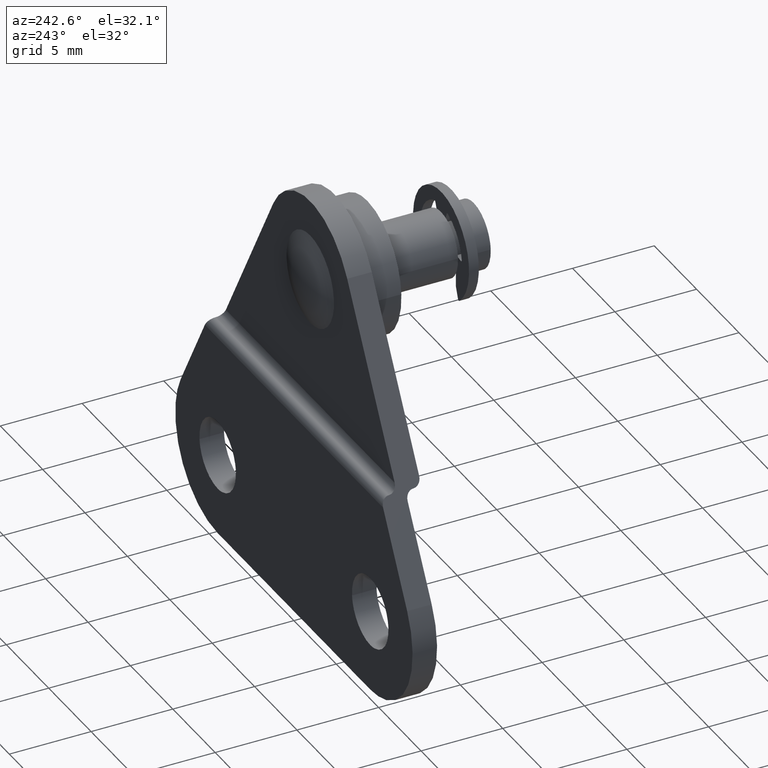
[diagram: clean part render]
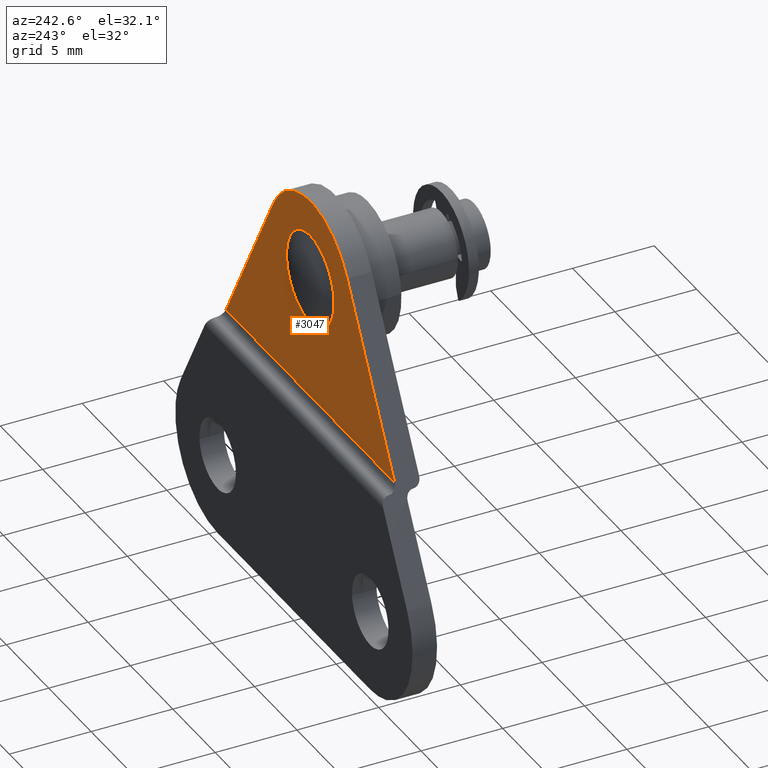
[diagram: same view with one face highlighted and labeled with its STEP entity id]
A machine part, auxiliary view. The second image highlights one B-rep face of the part: STEP entity #3047.
In plain terms, the highlighted face is a freeform B-spline surface patch.
Its self-contained STEP definition (entity closure, byte-faithful):
#2342=CARTESIAN_POINT('',(0.0,-0.999996304281336,18.800003535531779));
#2343=VERTEX_POINT('',#2342);
#2344=CARTESIAN_POINT('',(0.0,-0.999996304281336,13.199996464468221));
#2345=VERTEX_POINT('',#2344);
#2346=CARTESIAN_POINT('',(0.0,-0.999996304281336,18.800003535531779));
#2347=CARTESIAN_POINT('',(-2.800003535531781,-0.999996304281336,18.800003535531783));
#2348=CARTESIAN_POINT('',(-2.800003535531780,-0.999996304281336,16.0));
#2349=CARTESIAN_POINT('',(-2.800003535531781,-0.999996304281336,13.199996464468219));
#2350=CARTESIAN_POINT('',(0.0,-0.999996304281336,13.199996464468221));
#2358=(BOUNDED_CURVE()B_SPLINE_CURVE(2,(#2346,#2347,#2348,#2349,#2350),.UNSPECIFIED.,.F.,.U.)B_SPLINE_CURVE_WITH_KNOTS((3,2,3),(0.500000000000000,0.750000000000000,1.0),.UNSPECIFIED.)CURVE()GEOMETRIC_REPRESENTATION_ITEM()RATIONAL_B_SPLINE_CURVE((1.0,0.707106781186547,1.0,0.707106781186547,1.0))REPRESENTATION_ITEM(''));
#2359=EDGE_CURVE('',#2343,#2345,#2358,.T.);
#2361=CARTESIAN_POINT('',(0.0,-0.999996304281336,13.199996464468221));
#2362=CARTESIAN_POINT('',(2.800003535531781,-0.999996304281336,13.199996464468219));
#2363=CARTESIAN_POINT('',(2.800003535531780,-0.999996304281336,16.0));
#2364=CARTESIAN_POINT('',(2.800003535531781,-0.999996304281336,18.800003535531783));
#2365=CARTESIAN_POINT('',(0.0,-0.999996304281336,18.800003535531779));
#2373=(BOUNDED_CURVE()B_SPLINE_CURVE(2,(#2361,#2362,#2363,#2364,#2365),.UNSPECIFIED.,.F.,.U.)B_SPLINE_CURVE_WITH_KNOTS((3,2,3),(0.0,0.250000000000000,0.500000000000000),.UNSPECIFIED.)CURVE()GEOMETRIC_REPRESENTATION_ITEM()RATIONAL_B_SPLINE_CURVE((1.0,0.707106781186547,1.0,0.707106781186547,1.0))REPRESENTATION_ITEM(''));
#2374=EDGE_CURVE('',#2345,#2343,#2373,.T.);
#2459=CARTESIAN_POINT('',(-4.357876553693835,-1.0,18.451308210479748));
#2460=VERTEX_POINT('',#2459);
#2466=CARTESIAN_POINT('',(-9.955490004592731,-1.0,8.500000000000000));
#2467=VERTEX_POINT('',#2466);
#2468=CARTESIAN_POINT('',(-9.955490004592731,-1.0,8.500000000000000));
#2469=CARTESIAN_POINT('',(-4.357876553693835,-1.0,18.451308210479748));
#2470=QUASI_UNIFORM_CURVE('',1,(#2468,#2469),.UNSPECIFIED.,.F.,.U.);
#2471=EDGE_CURVE('',#2467,#2460,#2470,.T.);
#2617=CARTESIAN_POINT('',(9.955483750000102,-1.0,8.500000000000000));
#2618=VERTEX_POINT('',#2617);
#2632=CARTESIAN_POINT('',(4.357877500000000,-1.0,18.451300000000000));
#2633=VERTEX_POINT('',#2632);
#2634=CARTESIAN_POINT('',(4.357877500000000,-1.0,18.451300000000000));
#2635=CARTESIAN_POINT('',(9.955483750000102,-1.0,8.500000000000000));
#2636=QUASI_UNIFORM_CURVE('',1,(#2634,#2635),.UNSPECIFIED.,.F.,.U.);
#2637=EDGE_CURVE('',#2633,#2618,#2636,.T.);
#2816=CARTESIAN_POINT('',(-4.357876553693835,-1.0,18.451308210479748));
#2817=CARTESIAN_POINT('',(-2.924235078248259,-1.0,21.000001970171443));
#2818=CARTESIAN_POINT('',(0.000002415257209,-1.0,20.999999215459379));
#2819=CARTESIAN_POINT('',(2.924239908762678,-1.0,20.999996460747326));
#2820=CARTESIAN_POINT('',(4.357877500000000,-1.0,18.451300000000000));
#2828=(BOUNDED_CURVE()B_SPLINE_CURVE(2,(#2816,#2817,#2818,#2819,#2820),.UNSPECIFIED.,.F.,.U.)B_SPLINE_CURVE_WITH_KNOTS((3,2,3),(0.0,0.500000000000000,1.0),.UNSPECIFIED.)CURVE()GEOMETRIC_REPRESENTATION_ITEM()RATIONAL_B_SPLINE_CURVE((1.0,0.863209412007292,1.0,0.863209412007292,1.0))REPRESENTATION_ITEM(''));
#2829=EDGE_CURVE('',#2460,#2633,#2828,.T.);
#2855=CARTESIAN_POINT('',(-9.955490004592731,-1.0,8.500000000000000));
#2856=CARTESIAN_POINT('',(9.955483750000102,-1.0,8.500000000000000));
#2857=QUASI_UNIFORM_CURVE('',1,(#2855,#2856),.UNSPECIFIED.,.F.,.U.);
#2858=EDGE_CURVE('',#2467,#2618,#2857,.T.);
#3032=CARTESIAN_POINT('',(-10.950043220817310,-1.0,7.875625018756481));
#3033=CARTESIAN_POINT('',(-10.950043220817310,-1.0,21.624375426048019));
#3034=CARTESIAN_POINT('',(10.950035898116811,-1.0,7.875625018756481));
#3035=CARTESIAN_POINT('',(10.950035898116811,-1.0,21.624375426048019));
#3036=B_SPLINE_SURFACE_WITH_KNOTS('',1,1,((#3032,#3034),(#3033,#3035)),.UNSPECIFIED.,.F.,.F.,.U.,(2,2),(2,2),(0.0,13.748750407291540),(0.0,21.900079118934119),.UNSPECIFIED.);
#3037=ORIENTED_EDGE('',*,*,#2829,.T.);
#3038=ORIENTED_EDGE('',*,*,#2637,.T.);
#3039=ORIENTED_EDGE('',*,*,#2858,.F.);
#3040=ORIENTED_EDGE('',*,*,#2471,.T.);
#3041=EDGE_LOOP('',(#3037,#3038,#3039,#3040));
#3042=FACE_OUTER_BOUND('',#3041,.T.);
#3043=ORIENTED_EDGE('',*,*,#2374,.T.);
#3044=ORIENTED_EDGE('',*,*,#2359,.T.);
#3045=EDGE_LOOP('',(#3043,#3044));
#3046=FACE_BOUND('',#3045,.T.);
#3047=ADVANCED_FACE('',(#3042,#3046),#3036,.T.);